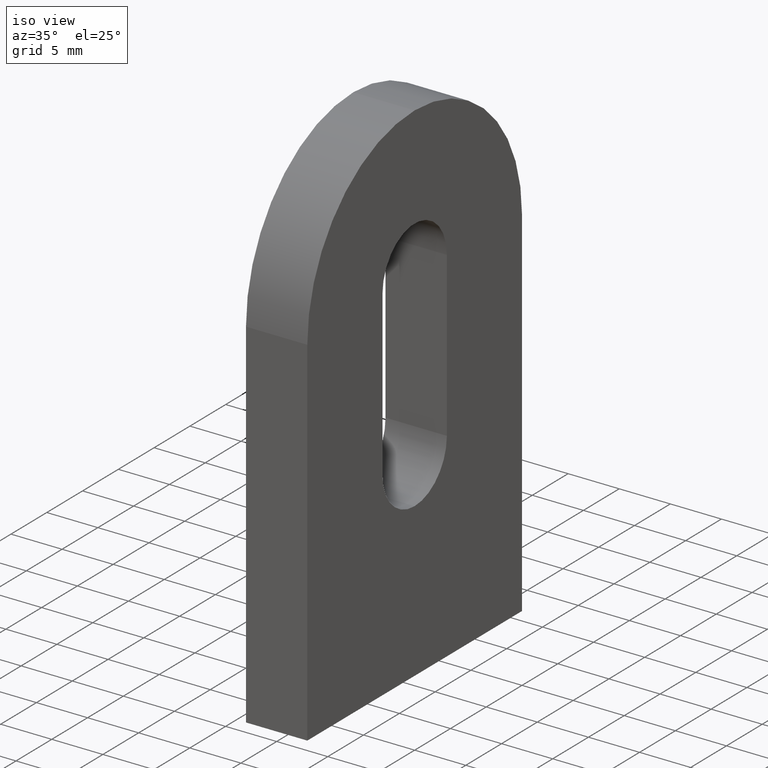
[diagram: clean part render]
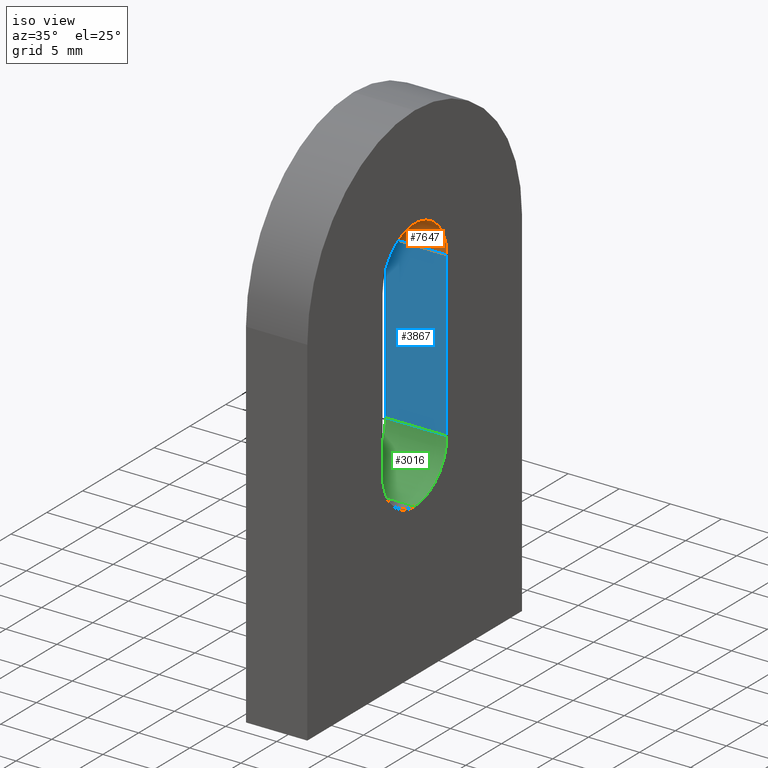
[diagram: same view with three faces highlighted in distinct colors, each labeled with its STEP entity id]
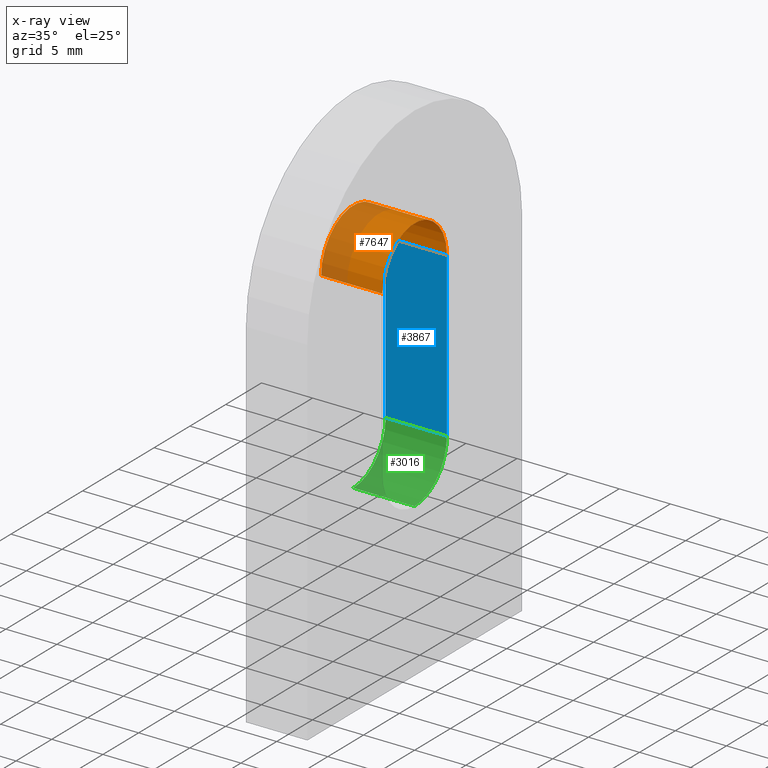
[diagram: x-ray of the same camera — body ghosted, the three highlighted faces saturated]
A machine part, iso view with three faces highlighted in distinct colors.
The next image is the same camera in x-ray (body ghosted, the three faces saturated) — at least one of them is partly hidden behind the body in this view.
Their STEP definitions:

[orange] entity #7647 — the highlighted cylindrical surface (partial cylindrical patch) has radius 4.5 mm, axis along (1, -0, -0).
#44 = VERTEX_POINT ( 'NONE', #2334 ) ;
#872 = DIRECTION ( 'NONE',  ( 1.000000000000000000, -0.0000000000000000000, -0.0000000000000000000 ) ) ;
#1206 = AXIS2_PLACEMENT_3D ( 'NONE', #4506, #2935, #5341 ) ;
#1386 = ORIENTED_EDGE ( 'NONE', *, *, #9319, .F. ) ;
#1410 = DIRECTION ( 'NONE',  ( 1.000000000000000000, -0.0000000000000000000, -0.0000000000000000000 ) ) ;
#1412 = EDGE_CURVE ( 'NONE', #7845, #2353, #10278, .T. ) ;
#1544 = FACE_OUTER_BOUND ( 'NONE', #4782, .T. ) ;
#1576 = CARTESIAN_POINT ( 'NONE',  ( -3.000000000000000000, -4.500000000000000900, 35.50000000000000000 ) ) ;
#1647 = ORIENTED_EDGE ( 'NONE', *, *, #4909, .F. ) ;
#1898 = CIRCLE ( 'NONE', #1206, 4.500000000000000900 ) ;
#2133 = CARTESIAN_POINT ( 'NONE',  ( -3.000000000000000000, 4.500000000000000900, 35.50000000000000000 ) ) ;
#2180 = ORIENTED_EDGE ( 'NONE', *, *, #5658, .T. ) ;
#2334 = CARTESIAN_POINT ( 'NONE',  ( 3.000000000000000000, -4.500000000000000900, 35.50000000000000000 ) ) ;
#2335 = DIRECTION ( 'NONE',  ( 0.0000000000000000000, 0.0000000000000000000, -1.000000000000000000 ) ) ;
#2353 = VERTEX_POINT ( 'NONE', #4152 ) ;
#2779 = AXIS2_PLACEMENT_3D ( 'NONE', #5007, #9138, #6765 ) ;
#2935 = DIRECTION ( 'NONE',  ( 1.000000000000000000, 0.0000000000000000000, 0.0000000000000000000 ) ) ;
#3837 = DIRECTION ( 'NONE',  ( 1.000000000000000000, 0.0000000000000000000, 0.0000000000000000000 ) ) ;
#4152 = CARTESIAN_POINT ( 'NONE',  ( 3.000000000000000000, 4.500000000000000900, 35.50000000000000000 ) ) ;
#4506 = CARTESIAN_POINT ( 'NONE',  ( 3.000000000000000000, -1.776356839400250900E-015, 35.50000000000000000 ) ) ;
#4782 = EDGE_LOOP ( 'NONE', ( #2180, #1647, #1386, #8876 ) ) ;
#4909 = EDGE_CURVE ( 'NONE', #6822, #44, #6257, .T. ) ;
#5007 = CARTESIAN_POINT ( 'NONE',  ( -3.000000000000000000, -1.776356839400250900E-015, 35.50000000000000000 ) ) ;
#5341 = DIRECTION ( 'NONE',  ( 0.0000000000000000000, 0.0000000000000000000, -1.000000000000000000 ) ) ;
#5658 = EDGE_CURVE ( 'NONE', #2353, #44, #1898, .T. ) ;
#6131 = CARTESIAN_POINT ( 'NONE',  ( -3.000000000000000000, -4.500000000000000900, 35.50000000000000000 ) ) ;
#6257 = LINE ( 'NONE', #1576, #10258 ) ;
#6461 = CARTESIAN_POINT ( 'NONE',  ( -3.000000000000000000, 4.500000000000000900, 35.50000000000000000 ) ) ;
#6685 = CYLINDRICAL_SURFACE ( 'NONE', #2779, 4.500000000000000900 ) ;
#6765 = DIRECTION ( 'NONE',  ( 0.0000000000000000000, 0.0000000000000000000, -1.000000000000000000 ) ) ;
#6822 = VERTEX_POINT ( 'NONE', #6131 ) ;
#7243 = CARTESIAN_POINT ( 'NONE',  ( -3.000000000000000000, -1.776356839400250900E-015, 35.50000000000000000 ) ) ;
#7647 = ADVANCED_FACE ( 'NONE', ( #1544 ), #6685, .F. ) ;
#7845 = VERTEX_POINT ( 'NONE', #6461 ) ;
#8065 = VECTOR ( 'NONE', #1410, 1000.000000000000000 ) ;
#8176 = CIRCLE ( 'NONE', #10084, 4.500000000000000900 ) ;
#8876 = ORIENTED_EDGE ( 'NONE', *, *, #1412, .T. ) ;
#9138 = DIRECTION ( 'NONE',  ( 1.000000000000000000, -0.0000000000000000000, -0.0000000000000000000 ) ) ;
#9319 = EDGE_CURVE ( 'NONE', #7845, #6822, #8176, .T. ) ;
#10084 = AXIS2_PLACEMENT_3D ( 'NONE', #7243, #3837, #2335 ) ;
#10258 = VECTOR ( 'NONE', #872, 1000.000000000000000 ) ;
#10278 = LINE ( 'NONE', #2133, #8065 ) ;

[blue] entity #3867 — the highlighted planar face has unit normal (0, 1, 0).
#216 = DIRECTION ( 'NONE',  ( 0.0000000000000000000, 1.000000000000000000, 1.626303258728256700E-016 ) ) ;
#1114 = PLANE ( 'NONE',  #6065 ) ;
#1410 = DIRECTION ( 'NONE',  ( 1.000000000000000000, -0.0000000000000000000, -0.0000000000000000000 ) ) ;
#1412 = EDGE_CURVE ( 'NONE', #7845, #2353, #10278, .T. ) ;
#1797 = EDGE_LOOP ( 'NONE', ( #2073, #8099, #4640, #2356 ) ) ;
#2073 = ORIENTED_EDGE ( 'NONE', *, *, #5207, .T. ) ;
#2133 = CARTESIAN_POINT ( 'NONE',  ( -3.000000000000000000, 4.500000000000000900, 35.50000000000000000 ) ) ;
#2280 = VECTOR ( 'NONE', #8626, 1000.000000000000000 ) ;
#2353 = VERTEX_POINT ( 'NONE', #4152 ) ;
#2356 = ORIENTED_EDGE ( 'NONE', *, *, #6769, .T. ) ;
#2395 = LINE ( 'NONE', #3582, #9579 ) ;
#2707 = CARTESIAN_POINT ( 'NONE',  ( 3.000000000000000000, 4.500000000000003600, 19.49999999999999600 ) ) ;
#2823 = FACE_OUTER_BOUND ( 'NONE', #1797, .T. ) ;
#3119 = VERTEX_POINT ( 'NONE', #3787 ) ;
#3582 = CARTESIAN_POINT ( 'NONE',  ( -3.000000000000000000, 4.500000000000003600, 19.49999999999999600 ) ) ;
#3787 = CARTESIAN_POINT ( 'NONE',  ( -3.000000000000000000, 4.500000000000003600, 19.49999999999999600 ) ) ;
#3867 = ADVANCED_FACE ( 'NONE', ( #2823 ), #1114, .F. ) ;
#4080 = EDGE_CURVE ( 'NONE', #3119, #7845, #5376, .T. ) ;
#4152 = CARTESIAN_POINT ( 'NONE',  ( 3.000000000000000000, 4.500000000000000900, 35.50000000000000000 ) ) ;
#4250 = CARTESIAN_POINT ( 'NONE',  ( -3.000000000000000000, 4.500000000000000900, 35.50000000000000000 ) ) ;
#4330 = DIRECTION ( 'NONE',  ( 0.0000000000000000000, -1.626303258728256700E-016, 1.000000000000000000 ) ) ;
#4640 = ORIENTED_EDGE ( 'NONE', *, *, #4080, .F. ) ;
#5207 = EDGE_CURVE ( 'NONE', #8101, #2353, #7787, .T. ) ;
#5264 = CARTESIAN_POINT ( 'NONE',  ( 3.000000000000000000, 4.500000000000000900, 35.50000000000000000 ) ) ;
#5352 = CARTESIAN_POINT ( 'NONE',  ( -3.000000000000000000, 4.500000000000000900, 35.50000000000000000 ) ) ;
#5376 = LINE ( 'NONE', #5352, #9490 ) ;
#6065 = AXIS2_PLACEMENT_3D ( 'NONE', #4250, #216, #4330 ) ;
#6461 = CARTESIAN_POINT ( 'NONE',  ( -3.000000000000000000, 4.500000000000000900, 35.50000000000000000 ) ) ;
#6769 = EDGE_CURVE ( 'NONE', #3119, #8101, #2395, .T. ) ;
#7787 = LINE ( 'NONE', #5264, #2280 ) ;
#7845 = VERTEX_POINT ( 'NONE', #6461 ) ;
#8065 = VECTOR ( 'NONE', #1410, 1000.000000000000000 ) ;
#8099 = ORIENTED_EDGE ( 'NONE', *, *, #1412, .F. ) ;
#8101 = VERTEX_POINT ( 'NONE', #2707 ) ;
#8626 = DIRECTION ( 'NONE',  ( -0.0000000000000000000, -1.626303258728256700E-016, 1.000000000000000000 ) ) ;
#9333 = DIRECTION ( 'NONE',  ( 1.000000000000000000, -0.0000000000000000000, -0.0000000000000000000 ) ) ;
#9418 = DIRECTION ( 'NONE',  ( -0.0000000000000000000, -1.626303258728256700E-016, 1.000000000000000000 ) ) ;
#9490 = VECTOR ( 'NONE', #9418, 1000.000000000000000 ) ;
#9579 = VECTOR ( 'NONE', #9333, 1000.000000000000000 ) ;
#10278 = LINE ( 'NONE', #2133, #8065 ) ;

[green] entity #3016 — the highlighted cylindrical surface (partial cylindrical patch) has radius 4.5 mm, axis along (1, -0, -0).
#102 = ORIENTED_EDGE ( 'NONE', *, *, #8123, .F. ) ;
#257 = CARTESIAN_POINT ( 'NONE',  ( -3.000000000000000000, 7.966394000823675000E-016, 14.99999999999999600 ) ) ;
#950 = DIRECTION ( 'NONE',  ( 1.000000000000000000, -0.0000000000000000000, -0.0000000000000000000 ) ) ;
#1046 = CIRCLE ( 'NONE', #9513, 4.500000000000000900 ) ;
#1841 = VERTEX_POINT ( 'NONE', #8670 ) ;
#2021 = DIRECTION ( 'NONE',  ( 1.000000000000000000, 0.0000000000000000000, 0.0000000000000000000 ) ) ;
#2231 = AXIS2_PLACEMENT_3D ( 'NONE', #5591, #6420, #2630 ) ;
#2395 = LINE ( 'NONE', #3582, #9579 ) ;
#2464 = ORIENTED_EDGE ( 'NONE', *, *, #3423, .T. ) ;
#2630 = DIRECTION ( 'NONE',  ( 0.0000000000000000000, 0.0000000000000000000, -1.000000000000000000 ) ) ;
#2707 = CARTESIAN_POINT ( 'NONE',  ( 3.000000000000000000, 4.500000000000003600, 19.49999999999999600 ) ) ;
#2949 = FACE_OUTER_BOUND ( 'NONE', #8396, .T. ) ;
#3016 = ADVANCED_FACE ( 'NONE', ( #2949 ), #9900, .F. ) ;
#3119 = VERTEX_POINT ( 'NONE', #3787 ) ;
#3423 = EDGE_CURVE ( 'NONE', #7735, #1841, #10280, .T. ) ;
#3582 = CARTESIAN_POINT ( 'NONE',  ( -3.000000000000000000, 4.500000000000003600, 19.49999999999999600 ) ) ;
#3787 = CARTESIAN_POINT ( 'NONE',  ( -3.000000000000000000, 4.500000000000003600, 19.49999999999999600 ) ) ;
#5102 = CIRCLE ( 'NONE', #2231, 4.500000000000000900 ) ;
#5591 = CARTESIAN_POINT ( 'NONE',  ( 3.000000000000000000, 7.966394000823675000E-016, 19.49999999999999600 ) ) ;
#6420 = DIRECTION ( 'NONE',  ( 1.000000000000000000, 0.0000000000000000000, 0.0000000000000000000 ) ) ;
#6481 = EDGE_CURVE ( 'NONE', #1841, #8101, #5102, .T. ) ;
#6769 = EDGE_CURVE ( 'NONE', #3119, #8101, #2395, .T. ) ;
#6962 = ORIENTED_EDGE ( 'NONE', *, *, #6481, .T. ) ;
#6989 = DIRECTION ( 'NONE',  ( 0.0000000000000000000, 0.0000000000000000000, -1.000000000000000000 ) ) ;
#7282 = AXIS2_PLACEMENT_3D ( 'NONE', #9361, #8552, #6989 ) ;
#7417 = ORIENTED_EDGE ( 'NONE', *, *, #6769, .F. ) ;
#7735 = VERTEX_POINT ( 'NONE', #7788 ) ;
#7755 = DIRECTION ( 'NONE',  ( 0.0000000000000000000, 0.0000000000000000000, -1.000000000000000000 ) ) ;
#7788 = CARTESIAN_POINT ( 'NONE',  ( -3.000000000000000000, 7.966394000823675000E-016, 14.99999999999999600 ) ) ;
#8101 = VERTEX_POINT ( 'NONE', #2707 ) ;
#8123 = EDGE_CURVE ( 'NONE', #7735, #3119, #1046, .T. ) ;
#8396 = EDGE_LOOP ( 'NONE', ( #102, #2464, #6962, #7417 ) ) ;
#8463 = CARTESIAN_POINT ( 'NONE',  ( -3.000000000000000000, 7.966394000823675000E-016, 19.49999999999999600 ) ) ;
#8552 = DIRECTION ( 'NONE',  ( 1.000000000000000000, -0.0000000000000000000, -0.0000000000000000000 ) ) ;
#8670 = CARTESIAN_POINT ( 'NONE',  ( 3.000000000000000000, 7.966394000823675000E-016, 14.99999999999999600 ) ) ;
#9333 = DIRECTION ( 'NONE',  ( 1.000000000000000000, -0.0000000000000000000, -0.0000000000000000000 ) ) ;
#9361 = CARTESIAN_POINT ( 'NONE',  ( -3.000000000000000000, 7.966394000823675000E-016, 19.49999999999999600 ) ) ;
#9513 = AXIS2_PLACEMENT_3D ( 'NONE', #8463, #2021, #7755 ) ;
#9579 = VECTOR ( 'NONE', #9333, 1000.000000000000000 ) ;
#9900 = CYLINDRICAL_SURFACE ( 'NONE', #7282, 4.500000000000000900 ) ;
#10280 = LINE ( 'NONE', #257, #10531 ) ;
#10531 = VECTOR ( 'NONE', #950, 1000.000000000000000 ) ;